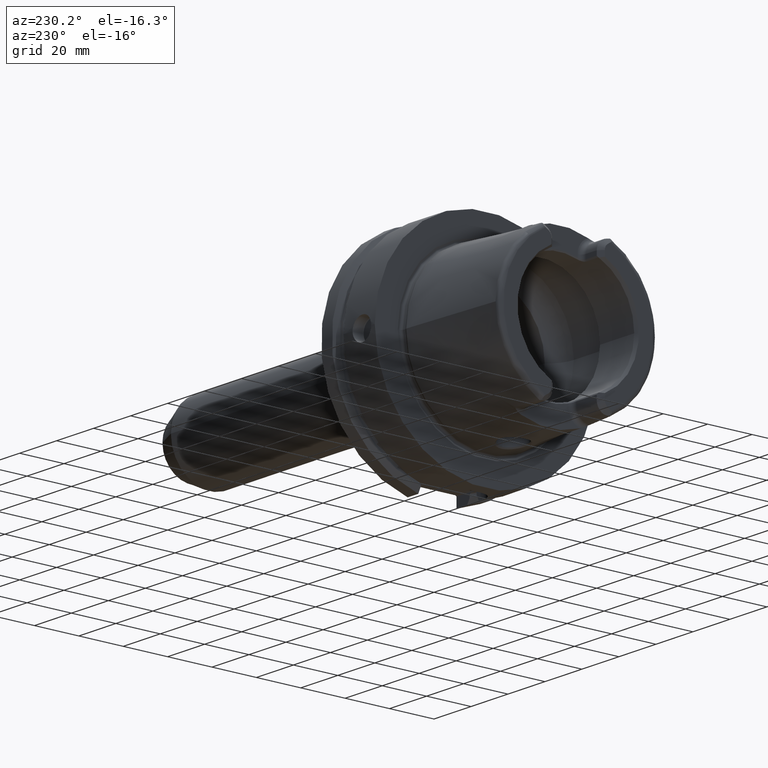
[diagram: clean part render]
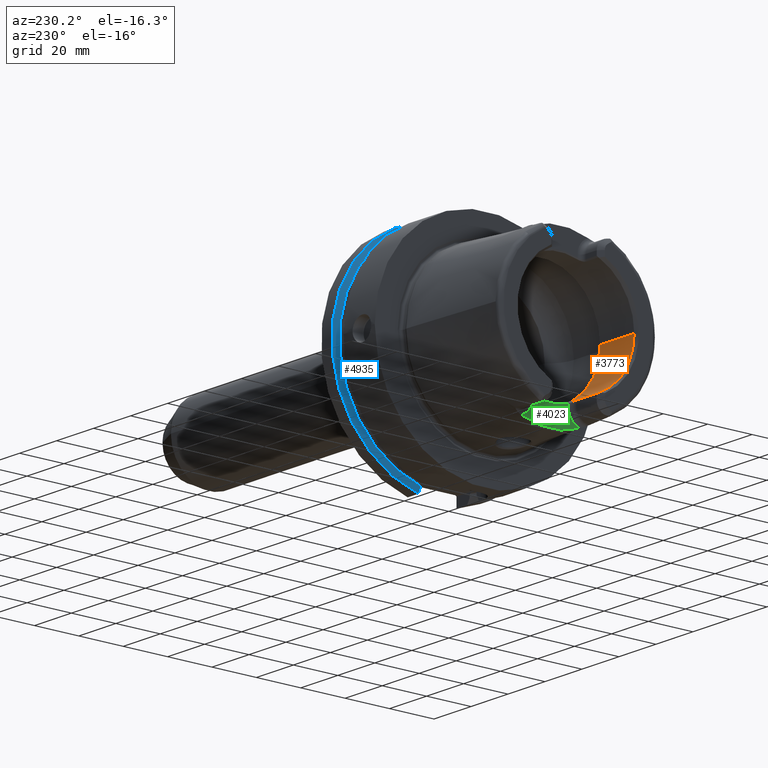
[diagram: same view with three faces highlighted in distinct colors, each labeled with its STEP entity id]
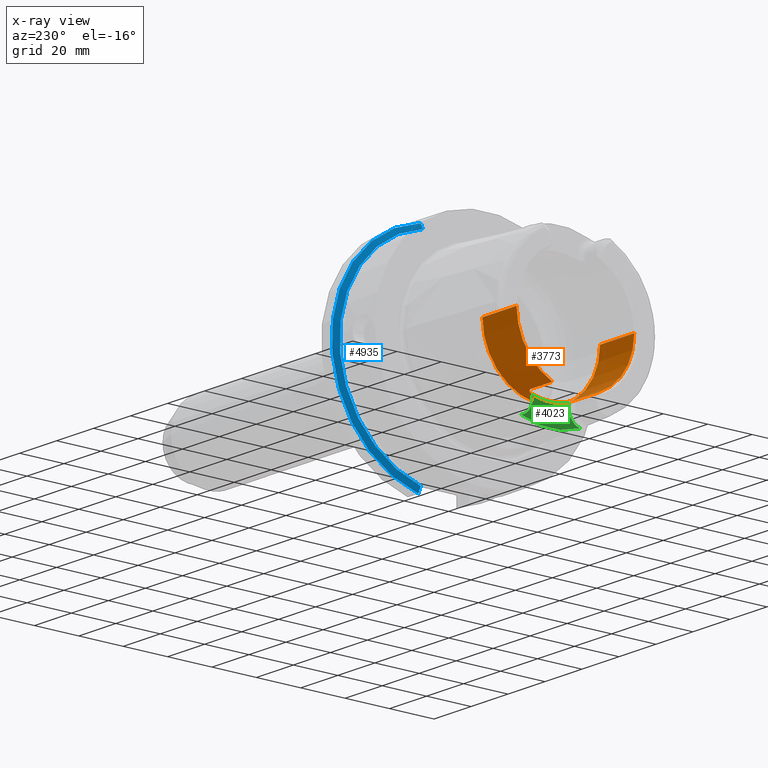
[diagram: x-ray of the same camera — body ghosted, the three highlighted faces saturated]
A machine part, auxiliary view with three faces highlighted in distinct colors.
The next image is the same camera in x-ray (body ghosted, the three faces saturated) — at least one of them is partly hidden behind the body in this view.
Their STEP definitions:

[orange] entity #3773 — the highlighted cylindrical surface (partial cylindrical patch) has radius 26.5 mm, axis along (1, 0, 0).
#152=CARTESIAN_POINT('',(-4.85E1,1.051E1,-2.432673220965E1));
#172=CARTESIAN_POINT('',(-4.85E1,0.E0,0.E0));
#173=DIRECTION('',(-1.E0,0.E0,0.E0));
#174=DIRECTION('',(0.E0,1.E0,0.E0));
#175=AXIS2_PLACEMENT_3D('',#172,#173,#174);
#180=CARTESIAN_POINT('',(-4.85E1,-1.051E1,-2.432673220965E1));
#182=CARTESIAN_POINT('',(-4.85E1,0.E0,0.E0));
#183=DIRECTION('',(-1.E0,0.E0,0.E0));
#184=DIRECTION('',(0.E0,-3.966037735849E-1,-9.179898947038E-1));
#185=AXIS2_PLACEMENT_3D('',#182,#183,#184);
#454=CARTESIAN_POINT('',(-4.85E1,-1.051E1,-2.432673220965E1));
#455=CARTESIAN_POINT('',(-4.846009940760E1,-1.047009940760E1,
-2.434397066250E1));
#456=CARTESIAN_POINT('',(-4.842017594144E1,-1.043017594144E1,
-2.436110250799E1));
#457=CARTESIAN_POINT('',(-4.838022966775E1,-1.039022966775E1,
-2.437812805470E1));
#459=DIRECTION('',(1.E0,0.E0,0.E0));
#460=VECTOR('',#459,1.138022966775E1);
#461=CARTESIAN_POINT('',(-4.838022966775E1,-1.039022966775E1,
-2.437812805470E1));
#462=LINE('',#461,#460);
#463=CARTESIAN_POINT('',(-3.471132486541E1,-8.01E0,-2.526044140549E1));
#464=CARTESIAN_POINT('',(-3.470878365387E1,-8.120563234659E0,
-2.522538218006E1));
#465=CARTESIAN_POINT('',(-3.471906599640E1,-8.340498761004E0,
-2.515406323082E1));
#466=CARTESIAN_POINT('',(-3.478267622202E1,-8.672586520945E0,
-2.504149237512E1));
#467=CARTESIAN_POINT('',(-3.489268945815E1,-8.989467647906E0,
-2.492938353432E1));
#468=CARTESIAN_POINT('',(-3.504052322957E1,-9.277750297862E0,
-2.482340953473E1));
#469=CARTESIAN_POINT('',(-3.522199090026E1,-9.537479373862E0,
-2.472468297045E1));
#470=CARTESIAN_POINT('',(-3.543924040038E1,-9.773195748090E0,
-2.463237051390E1));
#471=CARTESIAN_POINT('',(-3.569196362013E1,-9.980705213956E0,
-2.454892857931E1));
#472=CARTESIAN_POINT('',(-3.598453186629E1,-1.015759575719E1,
-2.447617541727E1));
#473=CARTESIAN_POINT('',(-3.632143240491E1,-1.029570459018E1,
-2.441829554687E1));
#474=CARTESIAN_POINT('',(-3.667918985616E1,-1.037618705974E1,
-2.438412368561E1));
#475=CARTESIAN_POINT('',(-3.689481839480E1,-1.039022966775E1,
-2.437812805470E1));
#476=CARTESIAN_POINT('',(-3.7E1,-1.039022966775E1,-2.437812805470E1));
#478=CARTESIAN_POINT('',(-3.471132486541E1,8.01E0,-2.526044140549E1));
#479=CARTESIAN_POINT('',(-3.471132486541E1,7.271271578955E0,-2.549468967366E1));
#480=CARTESIAN_POINT('',(-3.471132486546E1,5.773250992792E0,-2.589833317849E1));
#481=CARTESIAN_POINT('',(-3.471132486544E1,3.481810319461E0,-2.630458298809E1));
#482=CARTESIAN_POINT('',(-3.471132486544E1,1.163586982585E0,-2.650849211583E1));
#483=CARTESIAN_POINT('',(-3.471132486544E1,-1.163586982585E0,
-2.650849211583E1));
#484=CARTESIAN_POINT('',(-3.471132486544E1,-3.481810319461E0,
-2.630458298809E1));
#485=CARTESIAN_POINT('',(-3.471132486546E1,-5.773250992791E0,
-2.589833317849E1));
#486=CARTESIAN_POINT('',(-3.471132486541E1,-7.271271578958E0,
-2.549468967366E1));
#487=CARTESIAN_POINT('',(-3.471132486541E1,-8.01E0,-2.526044140549E1));
#489=CARTESIAN_POINT('',(-3.7E1,1.039022966775E1,-2.437812805470E1));
#490=CARTESIAN_POINT('',(-3.689375760304E1,1.039022966775E1,-2.437812805470E1));
#491=CARTESIAN_POINT('',(-3.667635124759E1,1.037592175927E1,-2.438423721529E1));
#492=CARTESIAN_POINT('',(-3.631623052643E1,1.029415408513E1,-2.441895189414E1));
#493=CARTESIAN_POINT('',(-3.597947032639E1,1.015497495082E1,-2.447726388108E1));
#494=CARTESIAN_POINT('',(-3.568903934051E1,9.978495762119E0,-2.454982411868E1));
#495=CARTESIAN_POINT('',(-3.543805179144E1,9.771970406757E0,-2.463285308238E1));
#496=CARTESIAN_POINT('',(-3.522178538203E1,9.537157318169E0,-2.472480442904E1));
#497=CARTESIAN_POINT('',(-3.504048499348E1,9.277715471543E0,-2.482342368645E1));
#498=CARTESIAN_POINT('',(-3.489237648633E1,8.988811706632E0,-2.492962282131E1));
#499=CARTESIAN_POINT('',(-3.478230284625E1,8.671343229943E0,-2.504192722240E1));
#500=CARTESIAN_POINT('',(-3.471884880625E1,8.338547582645E0,-2.515470883480E1));
#501=CARTESIAN_POINT('',(-3.470880260289E1,8.119738798873E0,-2.522564360584E1));
#502=CARTESIAN_POINT('',(-3.471132486541E1,8.01E0,-2.526044140549E1));
#504=DIRECTION('',(1.E0,0.E0,0.E0));
#505=VECTOR('',#504,1.138022966775E1);
#506=CARTESIAN_POINT('',(-4.838022966775E1,1.039022966775E1,-2.437812805470E1));
#507=LINE('',#506,#505);
#508=CARTESIAN_POINT('',(-4.838022966775E1,1.039022966775E1,-2.437812805470E1));
#509=CARTESIAN_POINT('',(-4.842017594144E1,1.043017594144E1,-2.436110250799E1));
#510=CARTESIAN_POINT('',(-4.846009940760E1,1.047009940760E1,-2.434397066250E1));
#511=CARTESIAN_POINT('',(-4.85E1,1.051E1,-2.432673220965E1));
#513=DIRECTION('',(-1.E0,0.E0,0.E0));
#514=VECTOR('',#513,1.849662432703E1);
#515=CARTESIAN_POINT('',(-3.000337567297E1,2.65E1,0.E0));
#516=LINE('',#515,#514);
#517=CARTESIAN_POINT('',(-3.000337567297E1,0.E0,0.E0));
#518=DIRECTION('',(-1.E0,0.E0,0.E0));
#519=DIRECTION('',(0.E0,1.E0,0.E0));
#520=AXIS2_PLACEMENT_3D('',#517,#518,#519);
#522=DIRECTION('',(-1.E0,0.E0,0.E0));
#523=VECTOR('',#522,1.849662432703E1);
#524=CARTESIAN_POINT('',(-3.000337567297E1,-2.65E1,0.E0));
#525=LINE('',#524,#523);
#2919=CARTESIAN_POINT('',(-3.000337567297E1,2.65E1,0.E0));
#2920=VERTEX_POINT('',#2919);
#2921=CARTESIAN_POINT('',(-4.85E1,2.65E1,0.E0));
#2922=VERTEX_POINT('',#2921);
#2931=CARTESIAN_POINT('',(-3.000337567297E1,-2.65E1,0.E0));
#2932=VERTEX_POINT('',#2931);
#2933=CARTESIAN_POINT('',(-4.85E1,-2.65E1,0.E0));
#2934=VERTEX_POINT('',#2933);
#3044=CARTESIAN_POINT('',(-3.7E1,-1.039022966775E1,-2.437812805470E1));
#3045=VERTEX_POINT('',#3044);
#3046=CARTESIAN_POINT('',(-3.471132486541E1,-8.01E0,-2.526044140549E1));
#3047=VERTEX_POINT('',#3046);
#3048=CARTESIAN_POINT('',(-3.7E1,1.039022966775E1,-2.437812805470E1));
#3049=VERTEX_POINT('',#3048);
#3050=CARTESIAN_POINT('',(-3.471132486541E1,8.01E0,-2.526044140549E1));
#3051=VERTEX_POINT('',#3050);
#3068=CARTESIAN_POINT('',(-4.838022966775E1,1.039022966775E1,
-2.437812805470E1));
#3069=VERTEX_POINT('',#3068);
#3070=VERTEX_POINT('',#152);
#3087=CARTESIAN_POINT('',(-4.838022966775E1,-1.039022966775E1,
-2.437812805470E1));
#3088=VERTEX_POINT('',#3087);
#3089=VERTEX_POINT('',#180);
#3746=CARTESIAN_POINT('',(-5.3125E1,0.E0,0.E0));
#3747=DIRECTION('',(1.E0,0.E0,0.E0));
#3748=DIRECTION('',(0.E0,-1.E0,0.E0));
#3749=AXIS2_PLACEMENT_3D('',#3746,#3747,#3748);
#3750=CYLINDRICAL_SURFACE('',#3749,2.65E1);
#3752=ORIENTED_EDGE('',*,*,#3751,.T.);
#3754=ORIENTED_EDGE('',*,*,#3753,.T.);
#3756=ORIENTED_EDGE('',*,*,#3755,.F.);
#3758=ORIENTED_EDGE('',*,*,#3757,.F.);
#3760=ORIENTED_EDGE('',*,*,#3759,.F.);
#3761=ORIENTED_EDGE('',*,*,#3738,.F.);
#3762=ORIENTED_EDGE('',*,*,#3470,.T.);
#3763=ORIENTED_EDGE('',*,*,#3492,.F.);
#3765=ORIENTED_EDGE('',*,*,#3764,.F.);
#3767=ORIENTED_EDGE('',*,*,#3766,.T.);
#3769=ORIENTED_EDGE('',*,*,#3768,.T.);
#3770=ORIENTED_EDGE('',*,*,#3504,.F.);
#3771=EDGE_LOOP('',(#3752,#3754,#3756,#3758,#3760,#3761,#3762,#3763,#3765,#3767,
#3769,#3770));
#3772=FACE_OUTER_BOUND('',#3771,.F.);
#3773=ADVANCED_FACE('',(#3772),#3750,.F.);
#176=CIRCLE('',#175,2.65E1);
#186=CIRCLE('',#185,2.65E1);
#458=B_SPLINE_CURVE_WITH_KNOTS('',3,(#454,#455,#456,#457),.UNSPECIFIED.,.F.,.F.,
(4,4),(0.E0,1.E0),.UNSPECIFIED.);
#477=B_SPLINE_CURVE_WITH_KNOTS('',3,(#463,#464,#465,#466,#467,#468,#469,#470,
#471,#472,#473,#474,#475,#476),.UNSPECIFIED.,.F.,.F.,(4,1,1,1,1,1,1,1,1,1,1,4),(
0.E0,9.090909090909E-2,1.818181818182E-1,2.727272727273E-1,3.636363636364E-1,
4.545454545455E-1,5.454545454545E-1,6.363636363636E-1,7.272727272727E-1,
8.181818181818E-1,9.090909090909E-1,1.E0),.UNSPECIFIED.);
#488=B_SPLINE_CURVE_WITH_KNOTS('',3,(#478,#479,#480,#481,#482,#483,#484,#485,
#486,#487),.UNSPECIFIED.,.F.,.F.,(4,1,1,1,1,1,1,4),(0.E0,1.428571428571E-1,
2.857142857143E-1,4.285714285714E-1,5.714285714286E-1,7.142857142857E-1,
8.571428571429E-1,1.E0),.UNSPECIFIED.);
#503=B_SPLINE_CURVE_WITH_KNOTS('',3,(#489,#490,#491,#492,#493,#494,#495,#496,
#497,#498,#499,#500,#501,#502),.UNSPECIFIED.,.F.,.F.,(4,1,1,1,1,1,1,1,1,1,1,4),(
0.E0,9.090909090909E-2,1.818181818182E-1,2.727272727273E-1,3.636363636364E-1,
4.545454545455E-1,5.454545454545E-1,6.363636363636E-1,7.272727272727E-1,
8.181818181818E-1,9.090909090909E-1,1.E0),.UNSPECIFIED.);
#512=B_SPLINE_CURVE_WITH_KNOTS('',3,(#508,#509,#510,#511),.UNSPECIFIED.,.F.,.F.,
(4,4),(0.E0,1.E0),.UNSPECIFIED.);
#521=CIRCLE('',#520,2.65E1);
#3470=EDGE_CURVE('',#3069,#3070,#512,.T.);
#3492=EDGE_CURVE('',#2922,#3070,#176,.T.);
#3504=EDGE_CURVE('',#3089,#2934,#186,.T.);
#3738=EDGE_CURVE('',#3069,#3049,#507,.T.);
#3751=EDGE_CURVE('',#3089,#3088,#458,.T.);
#3753=EDGE_CURVE('',#3088,#3045,#462,.T.);
#3755=EDGE_CURVE('',#3047,#3045,#477,.T.);
#3757=EDGE_CURVE('',#3051,#3047,#488,.T.);
#3759=EDGE_CURVE('',#3049,#3051,#503,.T.);
#3764=EDGE_CURVE('',#2920,#2922,#516,.T.);
#3766=EDGE_CURVE('',#2920,#2932,#521,.T.);
#3768=EDGE_CURVE('',#2932,#2934,#525,.T.);

[blue] entity #4935 — the highlighted conical surface has half-angle 60 deg.
#1646=CARTESIAN_POINT('',(2.324759526419E1,1.1E1,-4.877499359303E1));
#1647=CARTESIAN_POINT('',(2.309075618244E1,1.1E1,-4.849651763825E1));
#1648=CARTESIAN_POINT('',(2.277996511889E1,1.1E1,-4.794446101512E1));
#1649=CARTESIAN_POINT('',(2.232251548208E1,1.1E1,-4.713119970766E1));
#1650=CARTESIAN_POINT('',(2.202321854676E1,1.1E1,-4.659863454325E1));
#1651=CARTESIAN_POINT('',(2.1875E1,1.1E1,-4.633477721644E1));
#1653=CARTESIAN_POINT('',(2.324759526419E1,0.E0,0.E0));
#1654=DIRECTION('',(1.E0,0.E0,0.E0));
#1655=DIRECTION('',(0.E0,2.2E-1,-9.754998718606E-1));
#1656=AXIS2_PLACEMENT_3D('',#1653,#1654,#1655);
#1658=CARTESIAN_POINT('',(2.1875E1,1.E1,4.656083740331E1));
#1659=CARTESIAN_POINT('',(2.202341485415E1,1.E1,4.682376142925E1));
#1660=CARTESIAN_POINT('',(2.232297392293E1,1.E1,4.735424823675E1));
#1661=CARTESIAN_POINT('',(2.278043311037E1,1.E1,4.816377318979E1));
#1662=CARTESIAN_POINT('',(2.309095690730E1,1.E1,4.871289474479E1));
#1663=CARTESIAN_POINT('',(2.324759526419E1,1.E1,4.898979485566E1));
#1665=CARTESIAN_POINT('',(2.1875E1,0.E0,0.E0));
#1666=DIRECTION('',(-1.E0,0.E0,0.E0));
#1667=DIRECTION('',(0.E0,2.099843560504E-1,9.777047459300E-1));
#1668=AXIS2_PLACEMENT_3D('',#1665,#1666,#1667);
#3164=CARTESIAN_POINT('',(2.1875E1,1.E1,4.656083740331E1));
#3165=VERTEX_POINT('',#3164);
#3167=VERTEX_POINT('',#1663);
#3176=CARTESIAN_POINT('',(2.324759526419E1,1.1E1,-4.877499359303E1));
#3178=VERTEX_POINT('',#3176);
#3204=CARTESIAN_POINT('',(2.1875E1,1.1E1,-4.633477721644E1));
#3205=VERTEX_POINT('',#3204);
#4923=CARTESIAN_POINT('',(2.256129763210E1,0.E0,0.E0));
#4924=DIRECTION('',(1.E0,0.E0,0.E0));
#4925=DIRECTION('',(0.E0,-1.E0,0.E0));
#4926=AXIS2_PLACEMENT_3D('',#4923,#4924,#4925);
#4927=CONICAL_SURFACE('',#4926,4.881129763210E1,6.E1);
#4928=ORIENTED_EDGE('',*,*,#4554,.F.);
#4929=ORIENTED_EDGE('',*,*,#4485,.T.);
#4931=ORIENTED_EDGE('',*,*,#4930,.F.);
#4932=ORIENTED_EDGE('',*,*,#4887,.T.);
#4933=EDGE_LOOP('',(#4928,#4929,#4931,#4932));
#4934=FACE_OUTER_BOUND('',#4933,.F.);
#4935=ADVANCED_FACE('',(#4934),#4927,.T.);
#1652=B_SPLINE_CURVE_WITH_KNOTS('',3,(#1646,#1647,#1648,#1649,#1650,#1651),
.UNSPECIFIED.,.F.,.F.,(4,1,1,4),(0.E0,3.333333333333E-1,6.666666666667E-1,1.E0),
.UNSPECIFIED.);
#1657=CIRCLE('',#1656,5.E1);
#1664=B_SPLINE_CURVE_WITH_KNOTS('',3,(#1658,#1659,#1660,#1661,#1662,#1663),
.UNSPECIFIED.,.F.,.F.,(4,1,1,4),(0.E0,3.333333333333E-1,6.666666666667E-1,1.E0),
.UNSPECIFIED.);
#1669=CIRCLE('',#1668,4.762259526419E1);
#4485=EDGE_CURVE('',#3178,#3167,#1657,.T.);
#4554=EDGE_CURVE('',#3178,#3205,#1652,.T.);
#4887=EDGE_CURVE('',#3165,#3205,#1669,.T.);
#4930=EDGE_CURVE('',#3165,#3167,#1664,.T.);

[green] entity #4023 — the highlighted planar face has unit normal (-1, 0, 0).
#549=CARTESIAN_POINT('',(-3.5E1,0.E0,0.E0));
#550=DIRECTION('',(1.E0,0.E0,0.E0));
#551=DIRECTION('',(0.E0,-3.659355944317E-1,-9.306401779033E-1));
#552=AXIS2_PLACEMENT_3D('',#549,#550,#551);
#659=CARTESIAN_POINT('',(-3.5E1,1.326662904053E1,-3.373942900971E1));
#700=CARTESIAN_POINT('',(-3.5E1,-8.009999999994E0,-2.576044140549E1));
#701=CARTESIAN_POINT('',(-3.5E1,-7.269616392494E0,-2.599521452766E1));
#702=CARTESIAN_POINT('',(-3.5E1,-5.774680607735E0,-2.639793295020E1));
#703=CARTESIAN_POINT('',(-3.5E1,-3.481759859027E0,-2.680464578135E1));
#704=CARTESIAN_POINT('',(-3.5E1,-1.163574268408E0,-2.700848033442E1));
#705=CARTESIAN_POINT('',(-3.5E1,1.163574229636E0,-2.700848033529E1));
#706=CARTESIAN_POINT('',(-3.5E1,3.481759771636E0,-2.680464579107E1));
#707=CARTESIAN_POINT('',(-3.5E1,5.774680487919E0,-2.639793297771E1));
#708=CARTESIAN_POINT('',(-3.5E1,7.269616343063E0,-2.599521454333E1));
#709=CARTESIAN_POINT('',(-3.5E1,8.009999999993E0,-2.576044140549E1));
#711=DIRECTION('',(0.E0,-5.262912738182E-12,-1.E0));
#712=VECTOR('',#711,1.199558594507E0);
#713=CARTESIAN_POINT('',(-3.5E1,-8.009999999994E0,-2.576044140549E1));
#714=LINE('',#713,#712);
#715=CARTESIAN_POINT('',(-3.5E1,-1.501E1,-2.696E1));
#716=DIRECTION('',(-1.E0,0.E0,0.E0));
#717=DIRECTION('',(0.E0,1.E0,0.E0));
#718=AXIS2_PLACEMENT_3D('',#715,#716,#717);
#720=CARTESIAN_POINT('',(-3.5E1,1.501E1,-2.696E1));
#721=DIRECTION('',(-1.E0,0.E0,0.E0));
#722=DIRECTION('',(0.E0,-2.490529942106E-1,-9.684898585296E-1));
#723=AXIS2_PLACEMENT_3D('',#720,#721,#722);
#725=DIRECTION('',(0.E0,-6.865183864462E-12,1.E0));
#726=VECTOR('',#725,1.199558594503E0);
#727=CARTESIAN_POINT('',(-3.5E1,8.010000000001E0,-2.695999999999E1));
#728=LINE('',#727,#726);
#799=CARTESIAN_POINT('',(-3.5E1,-1.326662904053E1,-3.373942900971E1));
#3023=VERTEX_POINT('',#799);
#3024=VERTEX_POINT('',#659);
#3028=CARTESIAN_POINT('',(-3.5E1,-8.01E0,-2.696E1));
#3030=VERTEX_POINT('',#3028);
#3032=CARTESIAN_POINT('',(-3.5E1,8.01E0,-2.696E1));
#3034=VERTEX_POINT('',#3032);
#3040=VERTEX_POINT('',#700);
#3041=VERTEX_POINT('',#709);
#4008=CARTESIAN_POINT('',(-3.5E1,0.E0,0.E0));
#4009=DIRECTION('',(-1.E0,0.E0,0.E0));
#4010=DIRECTION('',(0.E0,0.E0,1.E0));
#4011=AXIS2_PLACEMENT_3D('',#4008,#4009,#4010);
#4012=PLANE('',#4011);
#4013=ORIENTED_EDGE('',*,*,#3999,.F.);
#4015=ORIENTED_EDGE('',*,*,#4014,.T.);
#4017=ORIENTED_EDGE('',*,*,#4016,.T.);
#4018=ORIENTED_EDGE('',*,*,#3847,.T.);
#4019=ORIENTED_EDGE('',*,*,#3905,.T.);
#4020=ORIENTED_EDGE('',*,*,#3917,.T.);
#4021=EDGE_LOOP('',(#4013,#4015,#4017,#4018,#4019,#4020));
#4022=FACE_OUTER_BOUND('',#4021,.F.);
#4023=ADVANCED_FACE('',(#4022),#4012,.T.);
#553=CIRCLE('',#552,3.6254E1);
#710=B_SPLINE_CURVE_WITH_KNOTS('',3,(#700,#701,#702,#703,#704,#705,#706,#707,
#708,#709),.UNSPECIFIED.,.F.,.F.,(4,1,1,1,1,1,1,4),(0.E0,1.428571428571E-1,
2.857142857143E-1,4.285714285714E-1,5.714285714286E-1,7.142857142857E-1,
8.571428571429E-1,1.E0),.UNSPECIFIED.);
#719=CIRCLE('',#718,7.E0);
#724=CIRCLE('',#723,7.E0);
#3847=EDGE_CURVE('',#3023,#3024,#553,.T.);
#3905=EDGE_CURVE('',#3024,#3034,#724,.T.);
#3917=EDGE_CURVE('',#3034,#3041,#728,.T.);
#3999=EDGE_CURVE('',#3040,#3041,#710,.T.);
#4014=EDGE_CURVE('',#3040,#3030,#714,.T.);
#4016=EDGE_CURVE('',#3030,#3023,#719,.T.);